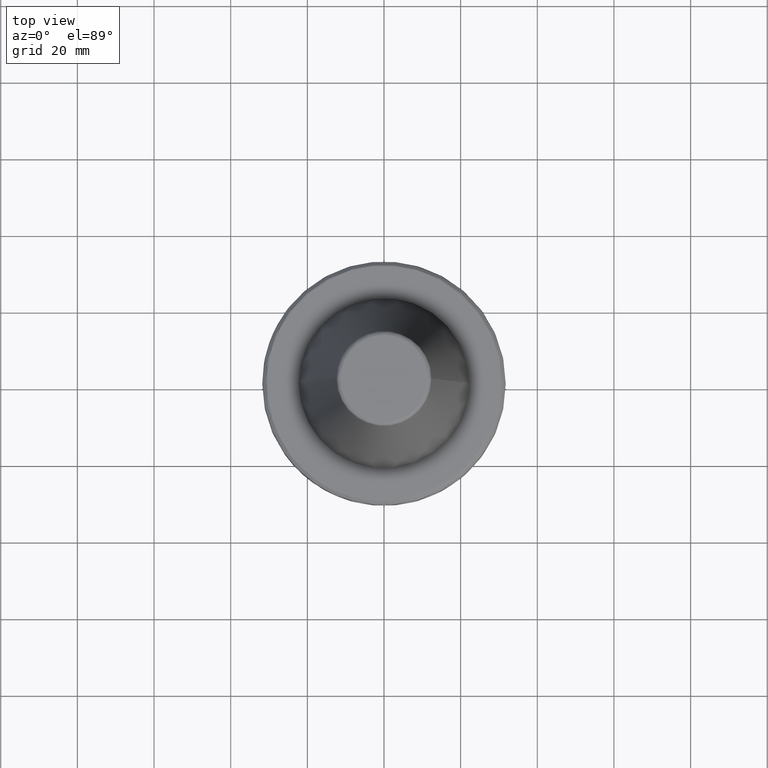
[diagram: clean part render]
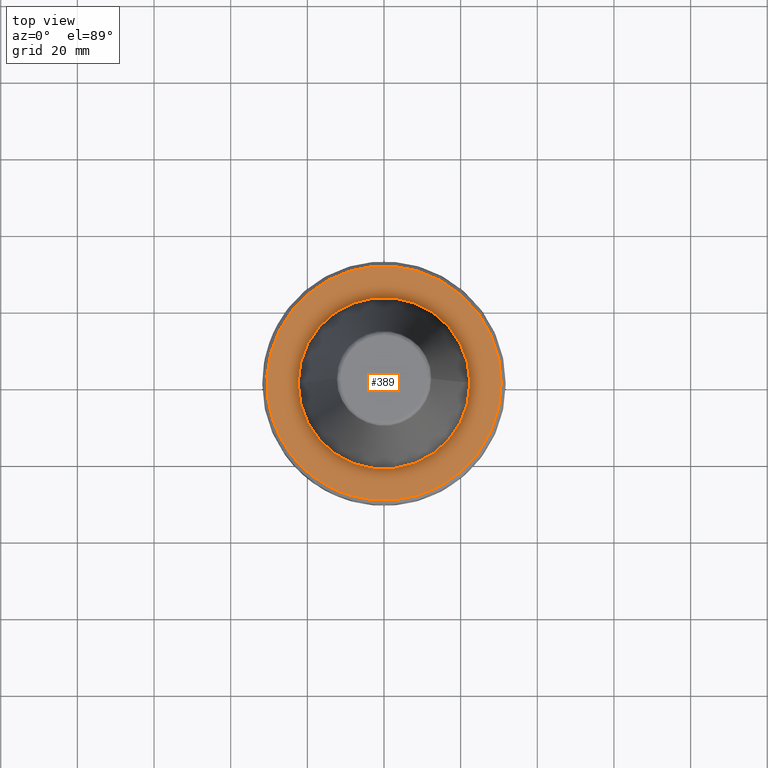
[diagram: same view with one face highlighted and labeled with its STEP entity id]
A machine part, top view. The second image highlights one B-rep face of the part: STEP entity #389.
In plain terms, the highlighted planar face has unit normal (0, 0, 1).
Its self-contained STEP definition (entity closure, byte-faithful):
#8 = DIRECTION ( 'NONE',  ( 1.000000000000000000, 0.0000000000000000000, 0.0000000000000000000 ) ) ;
#31 = CARTESIAN_POINT ( 'NONE',  ( -24.35467712638623900, -18.49999999900214900, -3.199999999992751800 ) ) ;
#78 = CARTESIAN_POINT ( 'NONE',  ( -30.00664000666373700, 5.918590416610261000, -3.199999999999999700 ) ) ;
#95 = CARTESIAN_POINT ( 'NONE',  ( 30.11462171584409100, -5.346324727405485300, -3.200000000000000600 ) ) ;
#102 = CARTESIAN_POINT ( 'NONE',  ( 30.46594877736648900, -3.107226573212539500, -3.200000000000001100 ) ) ;
#141 = CARTESIAN_POINT ( 'NONE',  ( -22.60704719491982200, 20.60339895295937000, -3.200000000000001100 ) ) ;
#145 = CARTESIAN_POINT ( 'NONE',  ( 27.30446105089888700, 13.77960584077433400, -3.199999999999999700 ) ) ;
#149 = CARTESIAN_POINT ( 'NONE',  ( -22.97586530458660900, 20.18797821449582100, -3.200000000000000200 ) ) ;
#157 = CARTESIAN_POINT ( 'NONE',  ( -30.45600243294833800, -2.869677877167249300, -3.200000000000001100 ) ) ;
#182 = CARTESIAN_POINT ( 'NONE',  ( -24.35467712638623900, -18.49999999900214900, -3.199999999992751800 ) ) ;
#194 = CARTESIAN_POINT ( 'NONE',  ( 15.63312649899546100, 26.30908247232661900, -3.199999999999999700 ) ) ;
#199 = CARTESIAN_POINT ( 'NONE',  ( -27.14030643795157600, -14.11962600863373800, -3.200000000000000600 ) ) ;
#207 = VERTEX_POINT ( 'NONE', #2462 ) ;
#212 = CARTESIAN_POINT ( 'NONE',  ( -30.04316917084663500, -5.728811184034476900, -3.199999999999999300 ) ) ;
#223 = CARTESIAN_POINT ( 'NONE',  ( -29.83690992490242200, 6.734690813153063600, -3.199999999999999700 ) ) ;
#231 = CARTESIAN_POINT ( 'NONE',  ( -23.23553451572979600, 19.88759568169124800, -3.200000000000001100 ) ) ;
#242 = CARTESIAN_POINT ( 'NONE',  ( 0.0000000000000000000, 0.0000000000000000000, -3.199999999989128000 ) ) ;
#243 = CARTESIAN_POINT ( 'NONE',  ( -14.81471182653499100, 26.75679245759450700, -3.200000000000000200 ) ) ;
#247 = CARTESIAN_POINT ( 'NONE',  ( -27.45665749223235600, 13.47440796541424000, -3.200000000000000600 ) ) ;
#259 = CARTESIAN_POINT ( 'NONE',  ( -27.52861534473356300, 13.32678886279803100, -3.199999999999999700 ) ) ;
#270 = CARTESIAN_POINT ( 'NONE',  ( 20.66739251347109300, -22.54633123097083900, -3.200000000000000200 ) ) ;
#284 = CARTESIAN_POINT ( 'NONE',  ( 28.11341838362710300, -12.09363560235297900, -3.200000000000000200 ) ) ;
#304 = CARTESIAN_POINT ( 'NONE',  ( -12.18944600826041500, -28.05403758115096100, -3.200000000000000600 ) ) ;
#330 = CARTESIAN_POINT ( 'NONE',  ( 29.87462194285095100, 6.637918887492992000, -3.200000000000000200 ) ) ;
#348 = CARTESIAN_POINT ( 'NONE',  ( 19.66278403231632800, 23.45208007078789700, -3.199999999999999700 ) ) ;
#350 = CARTESIAN_POINT ( 'NONE',  ( 8.750000007701791200, -29.30593451072649500, -3.199999999992751800 ) ) ;
#355 = CARTESIAN_POINT ( 'NONE',  ( 30.32631412557510600, 3.972719411372780000, -3.199999999999999300 ) ) ;
#369 = FACE_OUTER_BOUND ( 'NONE', #3325, .T. ) ;
#372 = CARTESIAN_POINT ( 'NONE',  ( 30.25823067364903500, 4.454452737944472500, -3.200000000000000600 ) ) ;
#386 = CARTESIAN_POINT ( 'NONE',  ( -13.08908166321120300, 27.65211582455301800, -3.199999999999999700 ) ) ;
#389 = ADVANCED_FACE ( 'NONE', ( #369, #3121 ), #1865, .T. ) ;
#396 = CARTESIAN_POINT ( 'NONE',  ( -10.03440936220958300, 28.90018038999096500, -3.200000000000001100 ) ) ;
#429 = CARTESIAN_POINT ( 'NONE',  ( 18.01888724242461100, -24.72684505743243800, -3.199999999999999700 ) ) ;
#440 = CARTESIAN_POINT ( 'NONE',  ( 21.27366583619894400, 21.97367061896671100, -3.199999999999999700 ) ) ;
#447 = ORIENTED_EDGE ( 'NONE', *, *, #1445, .F. ) ;
#455 = DIRECTION ( 'NONE',  ( 0.0000000000000000000, -0.0000000000000000000, -1.000000000000000000 ) ) ;
#464 = CARTESIAN_POINT ( 'NONE',  ( 26.43858753025698900, 15.46792342977378400, -3.199999999999999700 ) ) ;
#466 = ORIENTED_EDGE ( 'NONE', *, *, #2080, .T. ) ;
#470 = CARTESIAN_POINT ( 'NONE',  ( -26.41771855927659400, -15.41231568763065200, -3.199999999999999700 ) ) ;
#480 = CARTESIAN_POINT ( 'NONE',  ( -30.09443040616385900, -5.456185097072431500, -3.199999999999998800 ) ) ;
#487 = CARTESIAN_POINT ( 'NONE',  ( -29.28979484531307500, 8.829168608543394500, -3.200000000000000600 ) ) ;
#498 = CARTESIAN_POINT ( 'NONE',  ( 18.51602937112332700, 24.34886128421479200, -3.200000000000001500 ) ) ;
#504 = CARTESIAN_POINT ( 'NONE',  ( -21.17058143380841900, 22.08191790427515900, -3.200000000000000600 ) ) ;
#509 = B_SPLINE_CURVE_WITH_KNOTS ( 'NONE', 3,
 ( #590, #3166, #872, #1641, #2161, #1906, #2706, #3224, #2967, #304, #864, #576, #1378, #1894 ),
 .UNSPECIFIED., .F., .F.,
 ( 4, 2, 2, 2, 2, 2, 4 ),
 ( 0.0000000000000000000, 0.1250000000000001100, 0.2500000000000002200, 0.5000000000000000000, 0.6250000000000001100, 0.7500000000000002200, 1.000000000000000000 ),
 .UNSPECIFIED. ) ;
#511 = CARTESIAN_POINT ( 'NONE',  ( 29.05120496583942100, -9.561932265133823000, -3.200000000000000600 ) ) ;
#512 = CARTESIAN_POINT ( 'NONE',  ( -14.72305889361031600, 26.80733131571340900, -3.200000000000000600 ) ) ;
#513 = CARTESIAN_POINT ( 'NONE',  ( 27.01464350466073900, -14.33949392432599400, -3.200000000000000200 ) ) ;
#518 = CARTESIAN_POINT ( 'NONE',  ( 29.00228428247647700, -9.710154725183537400, -3.200000000000000600 ) ) ;
#559 = CARTESIAN_POINT ( 'NONE',  ( 29.10007373124273000, -9.412147284397983400, -3.200000000000000600 ) ) ;
#564 = CARTESIAN_POINT ( 'NONE',  ( 13.16339050328334500, 27.60666202648445400, -3.199999999999999300 ) ) ;
#566 = EDGE_CURVE ( 'NONE', #2275, #2697, #2812, .T. ) ;
#576 = CARTESIAN_POINT ( 'NONE',  ( -10.49047536660518900, -28.74349225668105100, -3.200000000000000600 ) ) ;
#577 = CARTESIAN_POINT ( 'NONE',  ( 0.0000000000000000000, 0.0000000000000000000, -3.199999999989128000 ) ) ;
#585 = DIRECTION ( 'NONE',  ( -0.0000000000000000000, -0.0000000000000000000, -1.000000000000000000 ) ) ;
#590 = CARTESIAN_POINT ( 'NONE',  ( -18.49999999566748300, -24.35467712731068300, -3.199999999992751800 ) ) ;
#645 = DIRECTION ( 'NONE',  ( 0.0000000000000000000, -0.0000000000000000000, -1.000000000000000000 ) ) ;
#659 = CARTESIAN_POINT ( 'NONE',  ( -21.85077139652849400, 21.41618816825279500, -3.199999999999999300 ) ) ;
#663 = VERTEX_POINT ( 'NONE', #1782 ) ;
#695 = CARTESIAN_POINT ( 'NONE',  ( 17.50300242392139100, 25.08082886292256200, -3.200000000000000600 ) ) ;
#703 = CARTESIAN_POINT ( 'NONE',  ( 13.30252496920843600, 27.53989375098128900, -3.200000000000000200 ) ) ;
#710 = CARTESIAN_POINT ( 'NONE',  ( 8.750000007703894400, 29.30593451091262500, -3.199999999992751800 ) ) ;
#729 = CARTESIAN_POINT ( 'NONE',  ( -26.23762176870540200, -15.71587309450848700, -3.199999999999999700 ) ) ;
#743 = CARTESIAN_POINT ( 'NONE',  ( -30.52455184108882900, -1.912777182722503100, -3.200000000000000600 ) ) ;
#757 = CARTESIAN_POINT ( 'NONE',  ( -28.17569039368290300, 11.97140622236332100, -3.200000000000000200 ) ) ;
#759 = CARTESIAN_POINT ( 'NONE',  ( 20.89601441473763500, -22.33312158525481200, -3.200000000000001500 ) ) ;
#761 = AXIS2_PLACEMENT_3D ( 'NONE', #2835, #645, #1800 ) ;
#766 = CARTESIAN_POINT ( 'NONE',  ( 30.58431457494243900, -1.558222356507505500, -3.200000000000000200 ) ) ;
#768 = CARTESIAN_POINT ( 'NONE',  ( -20.64621908750566000, 22.56402792900602000, -3.199999999999998800 ) ) ;
#775 = CARTESIAN_POINT ( 'NONE',  ( 8.750000007701791200, -29.30593451072649500, -3.199999999992751800 ) ) ;
#779 = CARTESIAN_POINT ( 'NONE',  ( -12.31532713735253500, 28.00097217545618700, -3.200000000000000200 ) ) ;
#784 = CARTESIAN_POINT ( 'NONE',  ( 21.50118090679837500, 21.75112156075034900, -3.200000000000000200 ) ) ;
#790 = CARTESIAN_POINT ( 'NONE',  ( 25.75598323228378600, -16.53133738924305300, -3.199999999999999300 ) ) ;
#806 = CARTESIAN_POINT ( 'NONE',  ( 29.36362994989899300, -8.592713705349609700, -3.200000000000000200 ) ) ;
#824 = CARTESIAN_POINT ( 'NONE',  ( 25.54889765261091100, 16.89702570798978000, -3.200000000000000200 ) ) ;
#827 = CARTESIAN_POINT ( 'NONE',  ( -30.95132634999999900, -29.65760573300000400, -3.200000000000000200 ) ) ;
#864 = CARTESIAN_POINT ( 'NONE',  ( -11.76511545907632000, -28.23457448923762700, -3.200000000000001100 ) ) ;
#872 = CARTESIAN_POINT ( 'NONE',  ( -17.76585417847589100, -24.89948202812318800, -3.200000000000000200 ) ) ;
#878 = EDGE_LOOP ( 'NONE', ( #1296, #1577 ) ) ;
#890 = CARTESIAN_POINT ( 'NONE',  ( -19.89955772104799800, 23.22875634150653900, -3.200000000000001100 ) ) ;
#899 = CARTESIAN_POINT ( 'NONE',  ( 13.21096976199898500, 27.58392837696255400, -3.200000000000000200 ) ) ;
#903 = CARTESIAN_POINT ( 'NONE',  ( 25.04419301627829600, -17.57563394831101200, -3.200000000000000200 ) ) ;
#940 = CARTESIAN_POINT ( 'NONE',  ( 12.49841719167354300, -27.91519285440401500, -3.200000000000000600 ) ) ;
#948 = AXIS2_PLACEMENT_3D ( 'NONE', #2755, #1177, #3022 ) ;
#962 = CARTESIAN_POINT ( 'NONE',  ( -30.35714322104373500, -3.814521796361118000, -3.200000000000000600 ) ) ;
#964 = ORIENTED_EDGE ( 'NONE', *, *, #2501, .T. ) ;
#977 = CARTESIAN_POINT ( 'NONE',  ( 20.12690644435191000, -23.03514712660222600, -3.199999999999999700 ) ) ;
#981 = CARTESIAN_POINT ( 'NONE',  ( 22.24208500326130900, 21.00019912546107600, -3.200000000000001100 ) ) ;
#995 = CARTESIAN_POINT ( 'NONE',  ( -27.96785039010801900, -12.37893507892003700, -3.199999999999999700 ) ) ;
#1006 = CARTESIAN_POINT ( 'NONE',  ( -29.07637914292382700, -9.485034748939387600, -3.199999999999999300 ) ) ;
#1014 = CARTESIAN_POINT ( 'NONE',  ( -30.56752560372573800, -1.101629830257781400, -3.199999999999998400 ) ) ;
#1021 = CARTESIAN_POINT ( 'NONE',  ( -26.53631004308435900, 15.23136756946113700, -3.200000000000000600 ) ) ;
#1023 = CARTESIAN_POINT ( 'NONE',  ( 30.17362696288510500, -4.997076762492928200, -3.200000000000000600 ) ) ;
#1033 = CARTESIAN_POINT ( 'NONE',  ( -20.50398956302551000, 22.69354631354398700, -3.199999999999999300 ) ) ;
#1039 = CARTESIAN_POINT ( 'NONE',  ( -28.86791483519898800, -10.11895008366315600, -3.200000000000000200 ) ) ;
#1043 = CARTESIAN_POINT ( 'NONE',  ( 17.28854808600716800, -25.22913129388787500, -3.200000000000000600 ) ) ;
#1049 = CARTESIAN_POINT ( 'NONE',  ( -11.73049159580589100, 28.24529943163183900, -3.200000000000000200 ) ) ;
#1082 = CARTESIAN_POINT ( 'NONE',  ( 22.40000000001206400, 0.0000000000000000000, -3.199999999889219500 ) ) ;
#1087 = AXIS2_PLACEMENT_3D ( 'NONE', #827, #1850, #2713 ) ;
#1106 = CARTESIAN_POINT ( 'NONE',  ( -30.50817724333470300, -2.158151821556833800, -3.200000000000000200 ) ) ;
#1116 = CARTESIAN_POINT ( 'NONE',  ( 13.75833804517002600, 27.31633657901983600, -3.200000000000000600 ) ) ;
#1138 = CARTESIAN_POINT ( 'NONE',  ( 17.16371239805568600, -25.31422304620215900, -3.200000000000000200 ) ) ;
#1141 = CARTESIAN_POINT ( 'NONE',  ( -17.42069638509337200, 25.13877918662724300, -3.200000000000000600 ) ) ;
#1161 = CIRCLE ( 'NONE', #761, 22.39999999969785100 ) ;
#1164 = VERTEX_POINT ( 'NONE', #2354 ) ;
#1170 = CARTESIAN_POINT ( 'NONE',  ( -8.750000010129651800, 29.30593451047106900, -3.199999999992751800 ) ) ;
#1177 = DIRECTION ( 'NONE',  ( -0.0000000000000000000, -0.0000000000000000000, -1.000000000000000000 ) ) ;
#1225 = CARTESIAN_POINT ( 'NONE',  ( 17.03753548627832300, -25.39962664109973300, -3.200000000000000200 ) ) ;
#1260 = CARTESIAN_POINT ( 'NONE',  ( 30.58431457497922400, 0.7789378387192470400, -3.200000000000000200 ) ) ;
#1266 = CARTESIAN_POINT ( 'NONE',  ( -27.86185882697515100, -12.61453971245590500, -3.199999999999999300 ) ) ;
#1272 = CARTESIAN_POINT ( 'NONE',  ( 16.66188227794187100, 25.66015139832961000, -3.200000000000001100 ) ) ;
#1275 = CARTESIAN_POINT ( 'NONE',  ( -29.13546399257390400, -9.302435590282232900, -3.199999999999999700 ) ) ;
#1277 = CARTESIAN_POINT ( 'NONE',  ( 28.43127797182755900, 11.32619597005888300, -3.199999999999998400 ) ) ;
#1286 = CARTESIAN_POINT ( 'NONE',  ( -30.51978818905194000, 1.987398875197850900, -3.200000000000000600 ) ) ;
#1296 = ORIENTED_EDGE ( 'NONE', *, *, #1867, .T. ) ;
#1297 = ORIENTED_EDGE ( 'NONE', *, *, #566, .F. ) ;
#1300 = CARTESIAN_POINT ( 'NONE',  ( -25.61905343684058800, 16.70542299491169700, -3.200000000000000600 ) ) ;
#1311 = CARTESIAN_POINT ( 'NONE',  ( -17.81250728907150100, 24.86194521247518100, -3.200000000000000600 ) ) ;
#1315 = CARTESIAN_POINT ( 'NONE',  ( 17.24770489136338000, -25.25706830436927300, -3.200000000000000200 ) ) ;
#1317 = CARTESIAN_POINT ( 'NONE',  ( -11.57474236083333000, 28.30960052366758400, -3.199999999999999300 ) ) ;
#1321 = CARTESIAN_POINT ( 'NONE',  ( 30.53992740088820000, 1.944017799023777200, -3.200000000000001100 ) ) ;
#1333 = CIRCLE ( 'NONE', #948, 30.58431456895074200 ) ;
#1346 = EDGE_CURVE ( 'NONE', #2284, #3194, #2929, .T. ) ;
#1349 = CARTESIAN_POINT ( 'NONE',  ( 21.04775901880446700, -22.19015579499590300, -3.200000000000000200 ) ) ;
#1355 = CARTESIAN_POINT ( 'NONE',  ( -30.53498006035072300, 1.738335191627422100, -3.200000000000000200 ) ) ;
#1367 = CARTESIAN_POINT ( 'NONE',  ( -14.41201855764547600, 26.97645795795278200, -3.200000000000001100 ) ) ;
#1378 = CARTESIAN_POINT ( 'NONE',  ( -9.627063558740104600, -29.04406584764300100, -3.200000000000001500 ) ) ;
#1393 = CARTESIAN_POINT ( 'NONE',  ( -29.06398545178545600, -9.522939143600709100, -3.200000000000000200 ) ) ;
#1397 = EDGE_CURVE ( 'NONE', #3194, #2697, #2615, .T. ) ;
#1425 = DIRECTION ( 'NONE',  ( -1.000000000000000000, 0.0000000000000000000, 0.0000000000000000000 ) ) ;
#1438 = CARTESIAN_POINT ( 'NONE',  ( 29.13150866295016400, 9.314405692024687200, -3.200000000000000600 ) ) ;
#1445 = EDGE_CURVE ( 'NONE', #207, #3190, #1853, .T. ) ;
#1450 = CARTESIAN_POINT ( 'NONE',  ( -25.35035608651382300, 17.11159192884433000, -3.199999999999999700 ) ) ;
#1477 = CARTESIAN_POINT ( 'NONE',  ( 16.74180548942037900, -25.59660207089839500, -3.199999999999999700 ) ) ;
#1488 = CARTESIAN_POINT ( 'NONE',  ( -20.30378576689982900, 22.87352932954893700, -3.199999999999999700 ) ) ;
#1532 = CARTESIAN_POINT ( 'NONE',  ( -27.78509302508921800, -12.78241790436497100, -3.199999999999999300 ) ) ;
#1542 = CARTESIAN_POINT ( 'NONE',  ( 27.53579823087290300, 13.31381489504425800, -3.200000000000000200 ) ) ;
#1549 = CARTESIAN_POINT ( 'NONE',  ( -29.37276763358824300, -8.532714459577590600, -3.200000000000000600 ) ) ;
#1559 = CARTESIAN_POINT ( 'NONE',  ( -30.45800355682440900, 2.811373114906366800, -3.199999999999999300 ) ) ;
#1564 = CARTESIAN_POINT ( 'NONE',  ( 29.22242562650121700, 9.025982997180744100, -3.200000000000000600 ) ) ;
#1566 = CARTESIAN_POINT ( 'NONE',  ( -24.36561455076381600, 18.50572647447503300, -3.200000000000000600 ) ) ;
#1572 = AXIS2_PLACEMENT_3D ( 'NONE', #2572, #455, #8 ) ;
#1575 = CARTESIAN_POINT ( 'NONE',  ( -17.72326642204017200, 24.92563775429168900, -3.200000000000000200 ) ) ;
#1577 = ORIENTED_EDGE ( 'NONE', *, *, #3122, .T. ) ;
#1608 = CARTESIAN_POINT ( 'NONE',  ( 13.03083016216347700, -27.66947951706819400, -3.199999999999998800 ) ) ;
#1618 = CARTESIAN_POINT ( 'NONE',  ( -25.60829732025885600, -16.75623625744964000, -3.200000000000000200 ) ) ;
#1629 = CARTESIAN_POINT ( 'NONE',  ( -16.12760614641509000, 25.99839006004933900, -3.200000000000000200 ) ) ;
#1634 = CARTESIAN_POINT ( 'NONE',  ( 12.80940557645657700, -27.77294294904543600, -3.200000000000000200 ) ) ;
#1638 = CARTESIAN_POINT ( 'NONE',  ( 10.60793010572749200, -28.70448418349612000, -3.200000000000001100 ) ) ;
#1641 = CARTESIAN_POINT ( 'NONE',  ( -17.01412528602097400, -25.41906943024163500, -3.199999999999999700 ) ) ;
#1659 = CARTESIAN_POINT ( 'NONE',  ( -30.03875898576990300, 5.753296610140292700, -3.199999999999999700 ) ) ;
#1667 = CARTESIAN_POINT ( 'NONE',  ( 11.87293231107205400, -28.19052007896982200, -3.200000000000000600 ) ) ;
#1717 = CARTESIAN_POINT ( 'NONE',  ( -19.07581981494246300, 23.92025428521233700, -3.199999999999999300 ) ) ;
#1729 = CARTESIAN_POINT ( 'NONE',  ( 17.63117976778674700, 24.99122199080179000, -3.200000000000000200 ) ) ;
#1782 = CARTESIAN_POINT ( 'NONE',  ( -8.750000002804483800, -29.30593451560488900, -3.199999999992751800 ) ) ;
#1789 = CARTESIAN_POINT ( 'NONE',  ( -27.51689847722229500, -13.36188732483183000, -3.200000000000000200 ) ) ;
#1798 = CARTESIAN_POINT ( 'NONE',  ( -30.02051352004196600, -5.845560525707930400, -3.199999999999999700 ) ) ;
#1799 = CARTESIAN_POINT ( 'NONE',  ( 29.52245486237021100, 8.007311505690708500, -3.200000000000000200 ) ) ;
#1800 = DIRECTION ( 'NONE',  ( 1.000000000000000000, 0.0000000000000000000, 0.0000000000000000000 ) ) ;
#1806 = CARTESIAN_POINT ( 'NONE',  ( -30.18991659531768300, 4.940394675488839500, -3.199999999999999700 ) ) ;
#1815 = CARTESIAN_POINT ( 'NONE',  ( -23.28586702455495300, 19.82864677725507000, -3.200000000000000200 ) ) ;
#1828 = CARTESIAN_POINT ( 'NONE',  ( -15.36475533550986800, 26.45138618764850900, -3.200000000000000600 ) ) ;
#1830 = CARTESIAN_POINT ( 'NONE',  ( 10.24950720284922700, 28.85822014735592200, -3.200000000000001100 ) ) ;
#1832 = CARTESIAN_POINT ( 'NONE',  ( -25.02937712577980300, 17.58175152820707900, -3.200000000000000200 ) ) ;
#1850 = DIRECTION ( 'NONE',  ( 0.0000000000000000000, 0.0000000000000000000, 1.000000000000000000 ) ) ;
#1853 = CIRCLE ( 'NONE', #2836, 30.58431456895074200 ) ;
#1865 = PLANE ( 'NONE',  #1087 ) ;
#1867 = EDGE_CURVE ( 'NONE', #2452, #1164, #1161, .T. ) ;
#1873 = CARTESIAN_POINT ( 'NONE',  ( 21.12234458143502300, -22.11917500973755700, -3.199999999999999700 ) ) ;
#1878 = EDGE_CURVE ( 'NONE', #2284, #663, #1333, .T. ) ;
#1894 = CARTESIAN_POINT ( 'NONE',  ( -8.750000002804483800, -29.30593451560488900, -3.199999999992751800 ) ) ;
#1895 = CARTESIAN_POINT ( 'NONE',  ( 22.41696336802521500, -20.87436625029941000, -3.199999999999999700 ) ) ;
#1906 = CARTESIAN_POINT ( 'NONE',  ( -15.46680225750201400, -26.40118262738546000, -3.200000000000000200 ) ) ;
#1913 = CARTESIAN_POINT ( 'NONE',  ( -25.00493942415501200, -17.64394982262551500, -3.200000000000000200 ) ) ;
#1925 = CARTESIAN_POINT ( 'NONE',  ( 23.53191602782543200, -19.60869746817805000, -3.199999999999999700 ) ) ;
#1929 = ORIENTED_EDGE ( 'NONE', *, *, #1878, .F. ) ;
#1960 = CARTESIAN_POINT ( 'NONE',  ( 19.01779444145786300, -23.97808580704083800, -3.200000000000000200 ) ) ;
#1968 = CARTESIAN_POINT ( 'NONE',  ( -10.91771441431206600, 28.57151601419805300, -3.200000000000001500 ) ) ;
#1997 = CARTESIAN_POINT ( 'NONE',  ( 28.64187388481826000, -10.74021475146966900, -3.200000000000000600 ) ) ;
#2014 = CIRCLE ( 'NONE', #1572, 22.39999999969785100 ) ;
#2029 = CARTESIAN_POINT ( 'NONE',  ( 16.14507668486138300, -25.98135443064629900, -3.199999999999999700 ) ) ;
#2038 = CARTESIAN_POINT ( 'NONE',  ( 27.84800975081928700, 12.65691434399849600, -3.199999999999999700 ) ) ;
#2042 = CARTESIAN_POINT ( 'NONE',  ( -26.66463373883028300, -14.98459560583705200, -3.200000000000000600 ) ) ;
#2048 = CARTESIAN_POINT ( 'NONE',  ( 17.37336089630949900, 25.17079964761403200, -3.200000000000000600 ) ) ;
#2051 = CARTESIAN_POINT ( 'NONE',  ( -30.19054507722352900, -4.910089097585602000, -3.200000000000000600 ) ) ;
#2066 = CARTESIAN_POINT ( 'NONE',  ( -29.56788579753339300, 7.869105171208503600, -3.200000000000000600 ) ) ;
#2077 = CARTESIAN_POINT ( 'NONE',  ( -23.13193311097334300, 20.00800658426498300, -3.199999999999999300 ) ) ;
#2080 = EDGE_CURVE ( 'NONE', #207, #663, #509, .T. ) ;
#2083 = CARTESIAN_POINT ( 'NONE',  ( -14.78510282146649300, 26.77316246059409000, -3.199999999999999700 ) ) ;
#2110 = CARTESIAN_POINT ( 'NONE',  ( -9.266611544380184600, 29.15168756855154400, -3.199999999999999300 ) ) ;
#2123 = CARTESIAN_POINT ( 'NONE',  ( 13.07333946004692600, -27.64942351694972800, -3.199999999999999700 ) ) ;
#2137 = CARTESIAN_POINT ( 'NONE',  ( 30.24389731534880000, 4.550745689336412000, -3.200000000000001100 ) ) ;
#2156 = CARTESIAN_POINT ( 'NONE',  ( -29.66179623868405100, -7.499344789660734800, -3.199999999999999700 ) ) ;
#2161 = CARTESIAN_POINT ( 'NONE',  ( -16.63381885801956300, -25.66956768650410200, -3.200000000000000200 ) ) ;
#2172 = CARTESIAN_POINT ( 'NONE',  ( 29.17699974098359700, 9.170909426525179600, -3.200000000000000600 ) ) ;
#2187 = CARTESIAN_POINT ( 'NONE',  ( 13.43966781614335400, 27.47351432406858200, -3.200000000000000200 ) ) ;
#2210 = CARTESIAN_POINT ( 'NONE',  ( 26.50879566407027000, -15.26440300517852000, -3.200000000000000600 ) ) ;
#2243 = CARTESIAN_POINT ( 'NONE',  ( -13.97400469053104800, 27.20788288991662900, -3.200000000000000600 ) ) ;
#2275 = VERTEX_POINT ( 'NONE', #1170 ) ;
#2284 = VERTEX_POINT ( 'NONE', #350 ) ;
#2298 = CARTESIAN_POINT ( 'NONE',  ( 29.08357432462400600, -9.463015289127055100, -3.200000000000000200 ) ) ;
#2302 = CARTESIAN_POINT ( 'NONE',  ( 29.32585479326786500, 8.687223259270568900, -3.199999999999999700 ) ) ;
#2320 = CARTESIAN_POINT ( 'NONE',  ( -26.29199126200150600, -15.62498454932543600, -3.200000000000000600 ) ) ;
#2324 = ORIENTED_EDGE ( 'NONE', *, *, #1397, .T. ) ;
#2328 = CARTESIAN_POINT ( 'NONE',  ( 30.58431456895074200, 0.0000000000000000000, -3.199999999989127500 ) ) ;
#2332 = CARTESIAN_POINT ( 'NONE',  ( -30.51395122999708000, -2.074996245457348300, -3.199999999999999700 ) ) ;
#2340 = CARTESIAN_POINT ( 'NONE',  ( -28.67028115014328900, 10.73290651426300900, -3.200000000000000200 ) ) ;
#2345 = CARTESIAN_POINT ( 'NONE',  ( -20.67369102716828900, 22.53886273168279400, -3.199999999999999700 ) ) ;
#2354 = CARTESIAN_POINT ( 'NONE',  ( -22.40000000001206400, 2.743208830091548200E-015, -3.199999999889219500 ) ) ;
#2361 = CARTESIAN_POINT ( 'NONE',  ( -14.62991357956633100, 26.85841837580943500, -3.200000000000000200 ) ) ;
#2405 = CARTESIAN_POINT ( 'NONE',  ( 30.58431456895074200, 0.0000000000000000000, -3.199999999989127500 ) ) ;
#2421 = CARTESIAN_POINT ( 'NONE',  ( 17.41738226537549400, 25.14036116404061300, -3.200000000000000600 ) ) ;
#2426 = CARTESIAN_POINT ( 'NONE',  ( 30.21370015823241700, -4.747118412308658700, -3.199999999999998800 ) ) ;
#2434 = CARTESIAN_POINT ( 'NONE',  ( -30.53008521787891300, 1.822348829147025800, -3.200000000000000200 ) ) ;
#2452 = VERTEX_POINT ( 'NONE', #1082 ) ;
#2458 = CARTESIAN_POINT ( 'NONE',  ( 29.14647157291397800, 9.267470087093851600, -3.200000000000000600 ) ) ;
#2462 = CARTESIAN_POINT ( 'NONE',  ( -18.49999999566748300, -24.35467712731068300, -3.199999999992751800 ) ) ;
#2465 = CARTESIAN_POINT ( 'NONE',  ( 21.72603785229832200, 21.52811101779871800, -3.200000000000000600 ) ) ;
#2467 = AXIS2_PLACEMENT_3D ( 'NONE', #242, #585, #3209 ) ;
#2501 = EDGE_CURVE ( 'NONE', #2275, #3190, #2546, .T. ) ;
#2546 = B_SPLINE_CURVE_WITH_KNOTS ( 'NONE', 3,
 ( #3412, #2110, #396, #1968, #3302, #1317, #2897, #1049, #2635, #779, #386, #2243, #1367, #2361, #512, #2083, #243, #1828, #1629, #2724, #1141, #3402, #1575, #3154, #1311, #2886, #1717, #890, #1488, #1033, #2625, #768, #2345, #504, #659, #141, #149, #2077, #231, #1815, #3394, #1566, #1832, #1450, #3283, #3140, #1300, #2877, #1021, #2609, #3237, #247, #259, #757, #2340, #487, #2066, #223, #2934, #78, #1659, #1806, #3380, #1559, #3132, #1286, #2434, #1355, #3199, #2864, #1014, #2598, #743, #2332, #1106, #157, #962, #2051, #480, #212, #1798, #3368, #2629, #2960, #2156, #1549, #3125, #1275, #2850, #1006, #1393, #1039, #2888, #2588, #995, #1266, #3110, #1532, #3358, #1789, #199, #2042, #470, #2320, #729, #2845, #2576, #1618, #1913, #31 ),
 .UNSPECIFIED., .F., .F.,
 ( 4, 1, 1, 1, 1, 2, 2, 1, 1, 1, 1, 2, 2, 1, 1, 1, 1, 2, 2, 1, 1, 1, 1, 2, 2, 1, 1, 1, 2, 2, 1, 1, 1, 2, 2, 1, 1, 2, 2, 2, 1, 1, 2, 2, 1, 1, 1, 2, 2, 1, 1, 1, 2, 2, 1, 1, 1, 1, 2, 2, 1, 1, 1, 1, 2, 2, 1, 1, 1, 1, 2, 2, 1, 1, 1, 1, 2, 2, 4 ),
 ( 0.0000000000000000000, 0.03125000000000116600, 0.04687500000000173500, 0.05468750000000201900, 0.05859375000000215100, 0.06054687500000221400, 0.06250000000000227600, 0.09375000000000204000, 0.1093750000000018300, 0.1171875000000017800, 0.1210937500000017900, 0.1230468750000018000, 0.1250000000000018000, 0.1562500000000033900, 0.1718750000000042500, 0.1796875000000046600, 0.1835937500000049700, 0.1855468750000050200, 0.1875000000000051100, 0.2187500000000064900, 0.2343750000000071900, 0.2421875000000075200, 0.2460937500000077200, 0.2480468750000076600, 0.2500000000000076100, 0.2812500000000076100, 0.2968750000000074900, 0.3046875000000074400, 0.3085937500000073300, 0.3125000000000072700, 0.3437500000000075500, 0.3593750000000077200, 0.3671875000000078800, 0.3710937500000077700, 0.3750000000000077200, 0.4062500000000073300, 0.4218750000000071600, 0.4296875000000071600, 0.4375000000000071100, 0.5000000000000069900, 0.5312500000000068800, 0.5468750000000069900, 0.5546875000000068800, 0.5625000000000068800, 0.5937500000000066600, 0.6093750000000066600, 0.6171875000000065500, 0.6210937500000066600, 0.6250000000000066600, 0.6562500000000066600, 0.6718750000000067700, 0.6796875000000066600, 0.6835937500000067700, 0.6875000000000067700, 0.7187500000000066600, 0.7343750000000067700, 0.7421875000000066600, 0.7460937500000067700, 0.7480468750000066600, 0.7500000000000066600, 0.7812500000000060000, 0.7968750000000058800, 0.8046875000000056600, 0.8085937500000056600, 0.8105468750000056600, 0.8125000000000057700, 0.8437500000000064400, 0.8593750000000067700, 0.8671875000000067700, 0.8710937500000068800, 0.8730468750000067700, 0.8750000000000067700, 0.9062500000000071100, 0.9218750000000074400, 0.9296875000000075500, 0.9335937500000076600, 0.9355468750000074400, 0.9375000000000073300, 1.000000000000000000 ),
 .UNSPECIFIED. ) ;
#2549 = CARTESIAN_POINT ( 'NONE',  ( 12.94231044375265700, -27.71099592680412000, -3.200000000000001100 ) ) ;
#2572 = CARTESIAN_POINT ( 'NONE',  ( 0.0000000000000000000, 0.0000000000000000000, -3.199999999889219500 ) ) ;
#2576 = CARTESIAN_POINT ( 'NONE',  ( -26.18213999846096800, -15.80812876136792200, -3.200000000000000200 ) ) ;
#2588 = CARTESIAN_POINT ( 'NONE',  ( -28.17460801222992500, -11.90569581821344700, -3.200000000000001100 ) ) ;
#2595 = CARTESIAN_POINT ( 'NONE',  ( 14.93054383237107000, -26.71406515074452100, -3.199999999999999700 ) ) ;
#2598 = CARTESIAN_POINT ( 'NONE',  ( -30.53948218100175500, -1.669443552608259200, -3.200000000000001100 ) ) ;
#2609 = CARTESIAN_POINT ( 'NONE',  ( -27.08475901293219200, 14.21302016300898800, -3.200000000000001100 ) ) ;
#2615 = B_SPLINE_CURVE_WITH_KNOTS ( 'NONE', 3,
 ( #2405, #1260, #1321, #2686, #355, #2643, #372, #2137, #3271, #2780, #330, #1799, #2302, #1564, #2172, #2458, #1438, #3382, #1277, #2038, #1542, #3128, #145, #2721, #464, #824, #3334, #3375, #981, #2465, #784, #2734, #440, #3404, #348, #498, #2735, #1729, #695, #2421, #2048, #1272, #194, #2955, #1116, #2187, #703, #899, #564, #2846, #1830, #710 ),
 .UNSPECIFIED., .F., .F.,
 ( 4, 1, 1, 1, 1, 2, 2, 1, 1, 1, 1, 2, 2, 1, 1, 1, 2, 2, 2, 1, 1, 1, 2, 2, 1, 1, 1, 1, 2, 2, 1, 1, 1, 1, 2, 2, 4 ),
 ( 0.0000000000000000000, 0.06250000000000066600, 0.09375000000000099900, 0.1093750000000011800, 0.1171875000000012800, 0.1210937500000013200, 0.1250000000000013600, 0.1875000000000013900, 0.2187500000000013600, 0.2343750000000013900, 0.2421875000000014200, 0.2460937500000014200, 0.2500000000000014400, 0.3125000000000011100, 0.3437500000000008900, 0.3593750000000007200, 0.3671875000000006700, 0.3750000000000006700, 0.4999999999999991100, 0.5624999999999982200, 0.5937499999999978900, 0.6093749999999977800, 0.6171874999999978900, 0.6249999999999980000, 0.6874999999999998900, 0.7187500000000008900, 0.7343750000000013300, 0.7421875000000015500, 0.7460937500000017800, 0.7500000000000018900, 0.8125000000000015500, 0.8437500000000014400, 0.8593750000000013300, 0.8671875000000012200, 0.8710937500000012200, 0.8750000000000011100, 1.000000000000000000 ),
 .UNSPECIFIED. ) ;
#2621 = CARTESIAN_POINT ( 'NONE',  ( 29.98636613862736400, -6.042372214834962600, -3.199999999999999700 ) ) ;
#2625 = CARTESIAN_POINT ( 'NONE',  ( -20.58938185562218600, 22.61590298310766300, -3.200000000000000200 ) ) ;
#2629 = CARTESIAN_POINT ( 'NONE',  ( -29.99730095766372200, -5.963528014844857100, -3.199999999999999700 ) ) ;
#2635 = CARTESIAN_POINT ( 'NONE',  ( -11.76005006331948400, 28.23300790982437300, -3.200000000000000200 ) ) ;
#2643 = CARTESIAN_POINT ( 'NONE',  ( 30.27938393630178700, 4.309987320248957600, -3.200000000000000200 ) ) ;
#2654 = CARTESIAN_POINT ( 'NONE',  ( 29.68887465165537900, -7.424673420111358400, -3.200000000000000600 ) ) ;
#2686 = CARTESIAN_POINT ( 'NONE',  ( 30.41046480978935700, 3.297455856607292000, -3.200000000000001100 ) ) ;
#2697 = VERTEX_POINT ( 'NONE', #2880 ) ;
#2706 = CARTESIAN_POINT ( 'NONE',  ( -14.66766458574038300, -26.85335061183077000, -3.200000000000000200 ) ) ;
#2713 = DIRECTION ( 'NONE',  ( 1.000000000000000000, 0.0000000000000000000, 0.0000000000000000000 ) ) ;
#2721 = CARTESIAN_POINT ( 'NONE',  ( 27.25807349469681300, 13.87114841333023000, -3.200000000000000200 ) ) ;
#2724 = CARTESIAN_POINT ( 'NONE',  ( -16.99365665604879200, 25.43168449206540800, -3.200000000000000200 ) ) ;
#2734 = CARTESIAN_POINT ( 'NONE',  ( 21.35045541406472200, 21.89907583140536200, -3.200000000000000200 ) ) ;
#2735 = CARTESIAN_POINT ( 'NONE',  ( 17.92848997913149500, 24.77998034608068400, -3.199999999999999700 ) ) ;
#2755 = CARTESIAN_POINT ( 'NONE',  ( 0.0000000000000000000, 0.0000000000000000000, -3.199999999989128000 ) ) ;
#2780 = CARTESIAN_POINT ( 'NONE',  ( 30.10613705573621200, 5.447749595829862700, -3.200000000000000600 ) ) ;
#2812 = CIRCLE ( 'NONE', #2467, 30.58431456895074200 ) ;
#2835 = CARTESIAN_POINT ( 'NONE',  ( 0.0000000000000000000, 0.0000000000000000000, -3.199999999889219500 ) ) ;
#2836 = AXIS2_PLACEMENT_3D ( 'NONE', #577, #3174, #1425 ) ;
#2845 = CARTESIAN_POINT ( 'NONE',  ( -26.20126735853190100, -15.77640873514470800, -3.200000000000000200 ) ) ;
#2846 = CARTESIAN_POINT ( 'NONE',  ( 11.70591539497169400, 28.29878714759592700, -3.200000000000000600 ) ) ;
#2850 = CARTESIAN_POINT ( 'NONE',  ( -29.10009688762953700, -9.412016743116248900, -3.199999999999999300 ) ) ;
#2864 = CARTESIAN_POINT ( 'NONE',  ( -30.59643630088237700, 0.03413862277865512000, -3.200000000000000600 ) ) ;
#2877 = CARTESIAN_POINT ( 'NONE',  ( -26.02417396986215100, 16.08047424866814300, -3.199999999999999700 ) ) ;
#2880 = CARTESIAN_POINT ( 'NONE',  ( 8.750000007703894400, 29.30593451091262500, -3.199999999992751800 ) ) ;
#2886 = CARTESIAN_POINT ( 'NONE',  ( -18.34356135644884100, 24.48047067088700900, -3.200000000000000200 ) ) ;
#2888 = CARTESIAN_POINT ( 'NONE',  ( -28.56722123989825900, -10.95109732226107200, -3.200000000000000200 ) ) ;
#2897 = CARTESIAN_POINT ( 'NONE',  ( -11.66821415015382300, 28.27108279582851600, -3.199999999999999700 ) ) ;
#2917 = CARTESIAN_POINT ( 'NONE',  ( 30.22181931986611000, -4.695130965018369000, -3.199999999999999700 ) ) ;
#2928 = CARTESIAN_POINT ( 'NONE',  ( 27.11294891314372200, -14.15271896487805100, -3.199999999999999300 ) ) ;
#2929 = B_SPLINE_CURVE_WITH_KNOTS ( 'NONE', 3,
 ( #775, #3058, #1638, #1667, #940, #1634, #2549, #1608, #2123, #3156, #2595, #2029, #1477, #1225, #1138, #1315, #1043, #429, #1960, #977, #270, #759, #1349, #1873, #1895, #1925, #903, #790, #2210, #3161, #513, #2928, #3093, #3399, #284, #1997, #3193, #518, #511, #2298, #559, #806, #2654, #2621, #95, #1023, #3390, #2426, #2917, #102, #766, #2328 ),
 .UNSPECIFIED., .F., .F.,
 ( 4, 1, 1, 1, 1, 2, 2, 1, 1, 1, 1, 2, 2, 1, 1, 1, 2, 2, 2, 1, 1, 1, 2, 2, 1, 1, 1, 1, 2, 2, 1, 1, 1, 1, 2, 2, 4 ),
 ( 0.0000000000000000000, 0.06250000000000151300, 0.09375000000000234500, 0.1093750000000028200, 0.1171875000000029800, 0.1210937500000031900, 0.1250000000000034100, 0.1875000000000060000, 0.2187500000000073800, 0.2343750000000081900, 0.2421875000000084900, 0.2460937500000086300, 0.2500000000000087200, 0.3125000000000102700, 0.3437500000000111600, 0.3593750000000117100, 0.3671875000000119300, 0.3750000000000122100, 0.5000000000000115500, 0.5625000000000113200, 0.5937500000000109900, 0.6093750000000109900, 0.6171875000000108800, 0.6250000000000106600, 0.6875000000000094400, 0.7187500000000087700, 0.7343750000000084400, 0.7421875000000083300, 0.7460937500000082200, 0.7500000000000079900, 0.8125000000000056600, 0.8437500000000045500, 0.8593750000000038900, 0.8671875000000035500, 0.8710937500000034400, 0.8750000000000033300, 1.000000000000000000 ),
 .UNSPECIFIED. ) ;
#2934 = CARTESIAN_POINT ( 'NONE',  ( -29.94033126872743700, 6.245440299451136200, -3.200000000000000200 ) ) ;
#2955 = CARTESIAN_POINT ( 'NONE',  ( 14.39035951460414800, 26.99281142657939000, -3.199999999999998800 ) ) ;
#2960 = CARTESIAN_POINT ( 'NONE',  ( -29.86930871712381500, -6.603203691234662100, -3.199999999999999700 ) ) ;
#2967 = CARTESIAN_POINT ( 'NONE',  ( -13.02564162029132600, -27.67570670269667600, -3.199999999999999700 ) ) ;
#3020 = ORIENTED_EDGE ( 'NONE', *, *, #1346, .T. ) ;
#3022 = DIRECTION ( 'NONE',  ( -1.000000000000000000, 0.0000000000000000000, 0.0000000000000000000 ) ) ;
#3058 = CARTESIAN_POINT ( 'NONE',  ( 9.499586882617956400, -29.08212711090951100, -3.200000000000000600 ) ) ;
#3093 = CARTESIAN_POINT ( 'NONE',  ( 27.16234441145669700, -14.05766916776551900, -3.199999999999999300 ) ) ;
#3095 = CARTESIAN_POINT ( 'NONE',  ( 30.58431456895074200, 0.0000000000000000000, -3.199999999989127500 ) ) ;
#3110 = CARTESIAN_POINT ( 'NONE',  ( -27.81587399590280200, -12.71529562751042300, -3.200000000000001100 ) ) ;
#3121 = FACE_BOUND ( 'NONE', #878, .T. ) ;
#3122 = EDGE_CURVE ( 'NONE', #1164, #2452, #2014, .T. ) ;
#3125 = CARTESIAN_POINT ( 'NONE',  ( -29.21652065264463600, -9.046367224974307700, -3.200000000000001100 ) ) ;
#3128 = CARTESIAN_POINT ( 'NONE',  ( 27.39758384887257100, 13.59353113779441600, -3.199999999999999700 ) ) ;
#3132 = CARTESIAN_POINT ( 'NONE',  ( -30.50334592115735400, 2.234850461318059100, -3.200000000000000600 ) ) ;
#3140 = CARTESIAN_POINT ( 'NONE',  ( -25.57521392620105200, 16.77245587820692700, -3.200000000000000600 ) ) ;
#3154 = CARTESIAN_POINT ( 'NONE',  ( -17.78355953502602600, 24.88265693429502100, -3.200000000000000200 ) ) ;
#3156 = CARTESIAN_POINT ( 'NONE',  ( 13.85338668445533000, -27.27902748328999400, -3.200000000000001100 ) ) ;
#3161 = CARTESIAN_POINT ( 'NONE',  ( 26.86579950824183900, -14.61878871352495700, -3.200000000000001100 ) ) ;
#3166 = CARTESIAN_POINT ( 'NONE',  ( -18.13585760168590300, -24.63128249409879400, -3.200000000000001100 ) ) ;
#3174 = DIRECTION ( 'NONE',  ( -0.0000000000000000000, -0.0000000000000000000, -1.000000000000000000 ) ) ;
#3190 = VERTEX_POINT ( 'NONE', #182 ) ;
#3193 = CARTESIAN_POINT ( 'NONE',  ( 28.88556950499376100, -10.05493610424307600, -3.200000000000001100 ) ) ;
#3194 = VERTEX_POINT ( 'NONE', #3095 ) ;
#3199 = CARTESIAN_POINT ( 'NONE',  ( -30.57462921566005300, 1.007896168242193400, -3.200000000000000600 ) ) ;
#3209 = DIRECTION ( 'NONE',  ( -1.000000000000000000, 0.0000000000000000000, 0.0000000000000000000 ) ) ;
#3224 = CARTESIAN_POINT ( 'NONE',  ( -13.43940110364781000, -27.47715635861848700, -3.199999999999999300 ) ) ;
#3237 = CARTESIAN_POINT ( 'NONE',  ( -27.30929933238594400, 13.77064492866291400, -3.200000000000000200 ) ) ;
#3271 = CARTESIAN_POINT ( 'NONE',  ( 30.23690969015816100, 4.596966591013927700, -3.200000000000000200 ) ) ;
#3283 = CARTESIAN_POINT ( 'NONE',  ( -25.48558228537683600, 16.90834378778270200, -3.200000000000000200 ) ) ;
#3302 = CARTESIAN_POINT ( 'NONE',  ( -11.35625217318867000, 28.39837399276684200, -3.200000000000000200 ) ) ;
#3325 = EDGE_LOOP ( 'NONE', ( #1297, #964, #447, #466, #1929, #3020, #2324 ) ) ;
#3334 = CARTESIAN_POINT ( 'NONE',  ( 24.03570220392985800, 18.93146982843809000, -3.199999999999999700 ) ) ;
#3358 = CARTESIAN_POINT ( 'NONE',  ( -27.76895211362175100, -12.81744145373530200, -3.199999999999999700 ) ) ;
#3368 = CARTESIAN_POINT ( 'NONE',  ( -30.00525718618230900, -5.923373329072068000, -3.200000000000000200 ) ) ;
#3375 = CARTESIAN_POINT ( 'NONE',  ( 23.23970308437296600, 19.91415950565049500, -3.200000000000000200 ) ) ;
#3380 = CARTESIAN_POINT ( 'NONE',  ( -30.33941053784289800, 3.960960899314229300, -3.200000000000001100 ) ) ;
#3382 = CARTESIAN_POINT ( 'NONE',  ( 28.86067104317558600, 10.15657918351391800, -3.200000000000000200 ) ) ;
#3390 = CARTESIAN_POINT ( 'NONE',  ( 30.19781723842399800, -4.847136730130876500, -3.200000000000000200 ) ) ;
#3394 = CARTESIAN_POINT ( 'NONE',  ( -23.75929579466794200, 19.26968628134894200, -3.199999999999999700 ) ) ;
#3399 = CARTESIAN_POINT ( 'NONE',  ( 27.59006064973718300, -13.22433385699029900, -3.200000000000001100 ) ) ;
#3402 = CARTESIAN_POINT ( 'NONE',  ( -17.63271986817258600, 24.98993840354658500, -3.199999999999999300 ) ) ;
#3404 = CARTESIAN_POINT ( 'NONE',  ( 20.59716095998346200, 22.62419373408764400, -3.200000000000000600 ) ) ;
#3412 = CARTESIAN_POINT ( 'NONE',  ( -8.750000010129651800, 29.30593451047106900, -3.199999999992751800 ) ) ;